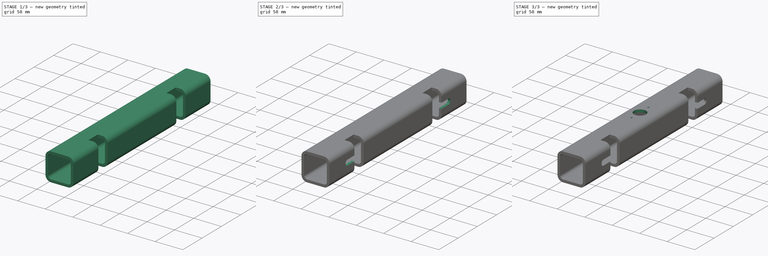
[diagram: build sequence overview — one tinted view per stage of 3, left to right]
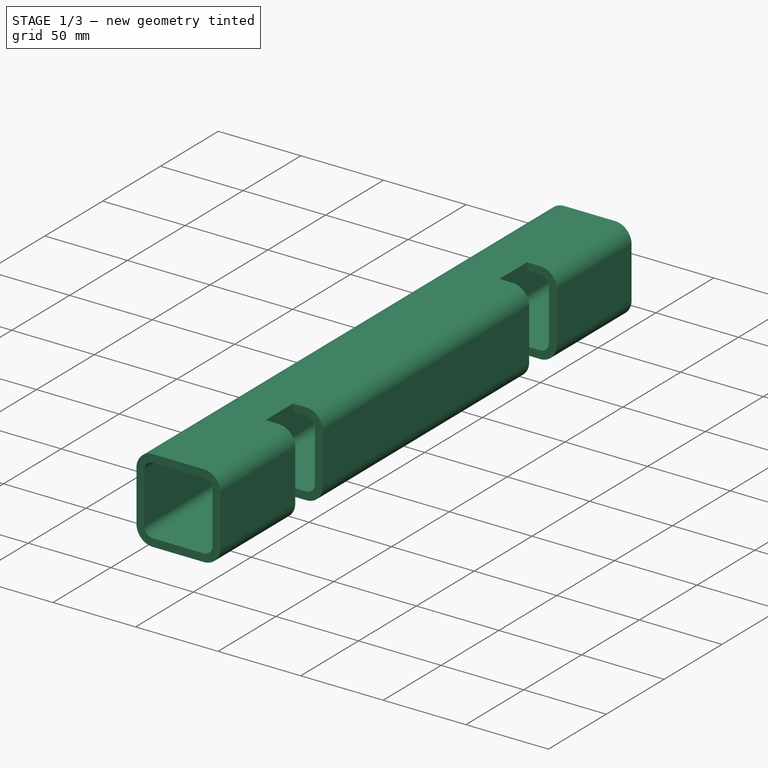
[diagram: stage 1 of 3 — iso view after this stage's code; geometry added in this stage tinted green]
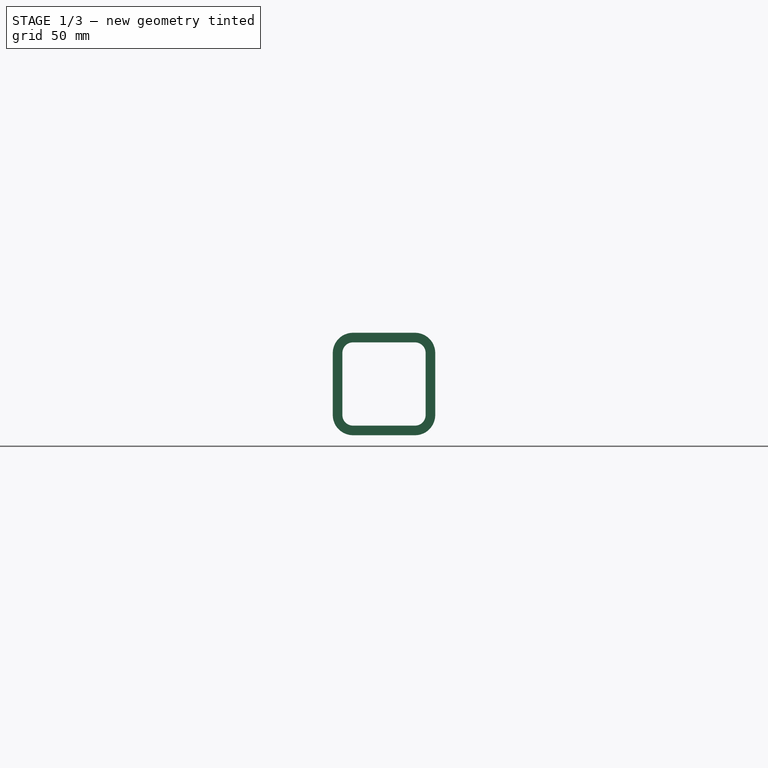
[diagram: stage 1 of 3 — front view after this stage's code; geometry added in this stage tinted green]
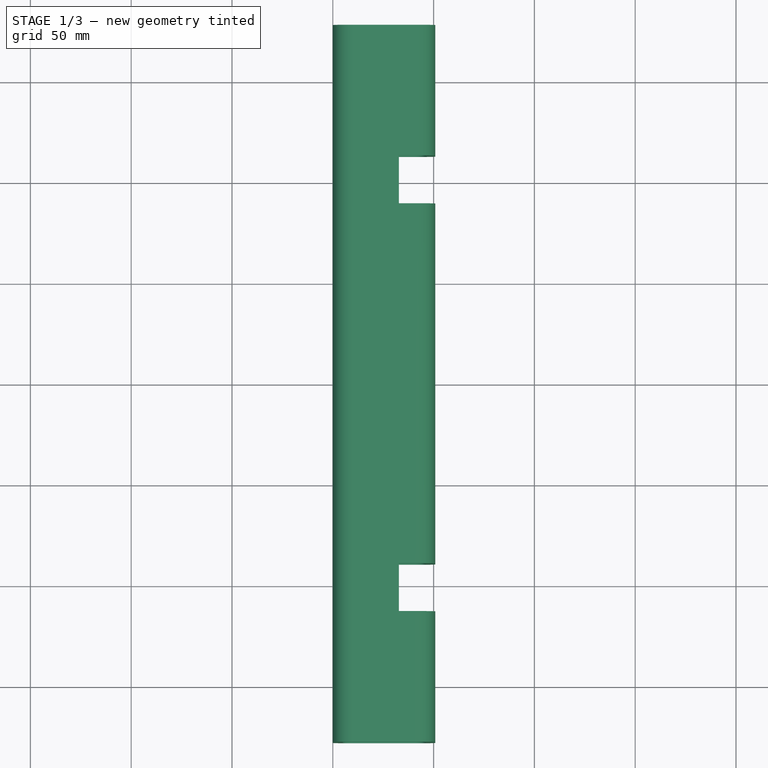
[diagram: stage 1 of 3 — top view after this stage's code; geometry added in this stage tinted green]
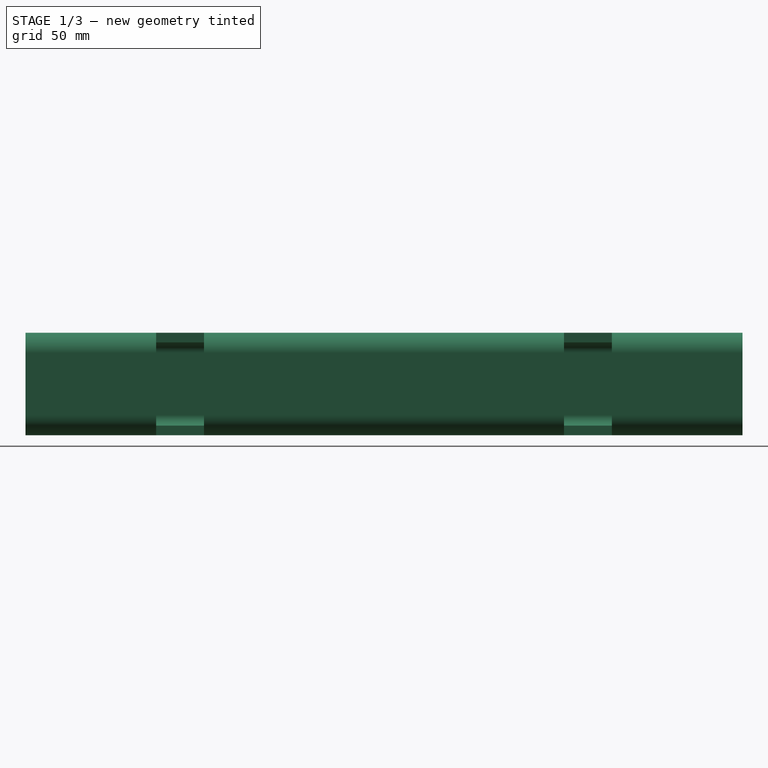
[diagram: stage 1 of 3 — right view after this stage's code; geometry added in this stage tinted green]
FCSTD DOCUMENT  (FreeCAD 0.19R23578 (Git))
Label: frame_top_piece
License: All rights reserved
LicenseURL: http://en.wikipedia.org/wiki/All_rights_reserved
objects: Sketcher::SketchObject×5, PartDesign::Pocket×4, PartDesign::CoordinateSystem×3, PartDesign::Pad×1, PartDesign::Body×1, App::Part×1
note: 19 computed .brp shape members not serialized (recipe doc carries the construction recipe); baked Part::Feature solids carry a one-line shape summary decoded from their .brp

FEATURE [Sketcher::SketchObject] Sketch010
  AttachmentOffset = pos=(0,0,50.8) rot=(0,0,1;0rad)
  MapMode = 5
  Placement = pos=(0,0,50.8) rot=(0,0,1;0rad)
  Support = -> [XY_Plane010]
  expr: Constraints[9] = (2 * 31 ^ 2) ^ 0.5
  sketch-geometry (4):
    g0: Circle CenterX=25.4 CenterY=0 CenterZ=0 NormalX=0 NormalY=0 NormalZ=1 AngleXU=0 Radius=11
    g1: Circle CenterX=25.4 CenterY=21.9203 CenterZ=0 NormalX=0 NormalY=0 NormalZ=1 AngleXU=0 Radius=1.55
    g2: Circle CenterX=25.4 CenterY=-21.9203 CenterZ=0 NormalX=0 NormalY=0 NormalZ=1 AngleXU=0 Radius=1.55
    g3: LineSegment StartX=25.4 StartY=21.9203 StartZ=0 EndX=25.4 EndY=-21.9203 EndZ=0
  constraints (10):
    c: PointOnObject(g0,g-1)
    c: Coincident(g3,g1)
    c: Coincident(g3,g2)
    c: DistanceX(g-1,g0) = 25.4
    c: PointOnObject(g0,g3)
    c: Symmetric(g1,g2,g-1)
    c: Equal(g1,g2)
    c: Diameter(g1) = 3.1
    c: Diameter(g0) = 22
    c: DistanceY(g2,g1) = 43.8406
FEATURE [Sketcher::SketchObject] Sketch011
  MapMode = 5
  Placement = pos=(0,0,0) rot=(0.57735,0.57735,0.57735;2.0944rad)
  Support = -> [YZ_Plane008]
  sketch-geometry (4):
    g0: LineSegment StartX=-20 StartY=20 StartZ=0 EndX=20 EndY=20 EndZ=0
    g1: LineSegment StartX=20 StartY=20 StartZ=0 EndX=20 EndY=-5 EndZ=0
    g2: LineSegment StartX=20 StartY=-5 StartZ=0 EndX=-20 EndY=-5 EndZ=0
    g3: LineSegment StartX=-20 StartY=-5 StartZ=0 EndX=-20 EndY=20 EndZ=0
  constraints (12):
    c: Coincident(g0,g1)
    c: Coincident(g1,g2)
    c: Coincident(g2,g3)
    c: Coincident(g3,g0)
    c: Horizontal(g0)
    c: Horizontal(g2)
    c: Vertical(g1)
    c: Vertical(g3)
    c: DistanceX(g0,g0) = 40
    c: DistanceY(g1,g0) = 25
    c: DistanceY(g-1,g0) = 20
    c: DistanceX(g-1,g0) = 20
FEATURE [Sketcher::SketchObject] Sketch007
  AttachmentOffset = pos=(0,0,50.8) rot=(0,0,1;0rad)
  MapMode = 5
  Placement = pos=(0,0,50.8) rot=(0,0,1;0rad)
  Support = -> [XY_Plane010]
  sketch-geometry (8):
    g0: LineSegment StartX=32.8 StartY=89.25 StartZ=0 EndX=57.8 EndY=89.25 EndZ=0
    g1: LineSegment StartX=57.8 StartY=89.25 StartZ=0 EndX=57.8 EndY=113.05 EndZ=0
    g2: LineSegment StartX=57.8 StartY=113.05 StartZ=0 EndX=32.8 EndY=113.05 EndZ=0
    g3: LineSegment StartX=32.8 StartY=113.05 StartZ=0 EndX=32.8 EndY=89.25 EndZ=0
    g4: LineSegment StartX=32.8 StartY=-89.25 StartZ=0 EndX=57.8 EndY=-89.25 EndZ=0
    g5: LineSegment StartX=57.8 StartY=-89.25 StartZ=0 EndX=57.8 EndY=-113.05 EndZ=0
    g6: LineSegment StartX=57.8 StartY=-113.05 StartZ=0 EndX=32.8 EndY=-113.05 EndZ=0
    g7: LineSegment StartX=32.8 StartY=-113.05 StartZ=0 EndX=32.8 EndY=-89.25 EndZ=0
  constraints (22):
    c: Coincident(g0,g1)
    c: Coincident(g1,g2)
    c: Coincident(g2,g3)
    c: Coincident(g3,g0)
    c: Horizontal(g0)
    c: Horizontal(g2)
    c: Vertical(g1)
    c: Vertical(g3)
    c: Coincident(g4,g5)
    c: Coincident(g5,g6)
    c: Coincident(g6,g7)
    c: Coincident(g7,g4)
    c: Horizontal(g4)
    c: Horizontal(g6)
    c: Vertical(g5)
    c: Vertical(g7)
    c: Symmetric(g0,g4,g-1)
    c: Symmetric(g1,g5,g-1)
    c: DistanceY(g1,g1) = 23.8
    c: DistanceX(g-1,g0) = 32.8
    c: DistanceX(g0,g0) = 25
    c: DistanceY(g4,g0) = 178.5
FEATURE [Sketcher::SketchObject] Sketch008
  MapMode = 5
  Placement = pos=(0,0,0) rot=(1,0,0;1.5708rad)
  Support = -> [XZ_Plane008]
  sketch-geometry (16):
    g0: LineSegment StartX=10 StartY=1.8e-15 StartZ=0 EndX=40.8 EndY=1.8e-15 EndZ=0
    g1: LineSegment StartX=50.8 StartY=10 StartZ=0 EndX=50.8 EndY=40.8 EndZ=0
    g2: LineSegment StartX=40.8 StartY=50.8 StartZ=0 EndX=10 EndY=50.8 EndZ=0
    g3: LineSegment StartX=0 StartY=40.8 StartZ=0 EndX=0 EndY=10 EndZ=0
    g4: ArcOfCircle CenterX=10 CenterY=40.8 CenterZ=0 NormalX=0 NormalY=0 NormalZ=1 AngleXU=0 Radius=10 StartAngle=1.5708 EndAngle=3.14159
    g5: ArcOfCircle CenterX=10 CenterY=10 CenterZ=0 NormalX=0 NormalY=0 NormalZ=1 AngleXU=0 Radius=10 StartAngle=3.14159 EndAngle=4.71239
    g6: ArcOfCircle CenterX=40.8 CenterY=10 CenterZ=0 NormalX=0 NormalY=0 NormalZ=1 AngleXU=0 Radius=10 StartAngle=4.71239 EndAngle=6.28319
    g7: ArcOfCircle CenterX=40.8 CenterY=40.8 CenterZ=0 NormalX=0 NormalY=0 NormalZ=1 AngleXU=0 Radius=10 StartAngle=3e-16 EndAngle=1.5708
    g8: LineSegment StartX=10 StartY=46.0375 StartZ=0 EndX=40.8 EndY=46.0375 EndZ=0
    g9: LineSegment StartX=46.0375 StartY=40.8 StartZ=0 EndX=46.0375 EndY=10 EndZ=0
    g10: LineSegment StartX=40.8 StartY=4.7625 StartZ=0 EndX=10 EndY=4.7625 EndZ=0
    g11: LineSegment StartX=4.7625 StartY=10 StartZ=0 EndX=4.7625 EndY=40.8 EndZ=0
    g12: ArcOfCircle CenterX=10 CenterY=40.8 CenterZ=0 NormalX=0 NormalY=0 NormalZ=1 AngleXU=0 Radius=5.2375 StartAngle=1.5708 EndAngle=3.14159
    g13: ArcOfCircle CenterX=10 CenterY=10 CenterZ=0 NormalX=0 NormalY=0 NormalZ=1 AngleXU=0 Radius=5.2375 StartAngle=3.14159 EndAngle=4.71239
    g14: ArcOfCircle CenterX=40.8 CenterY=10 CenterZ=0 NormalX=0 NormalY=0 NormalZ=1 AngleXU=0 Radius=5.2375 StartAngle=4.71239 EndAngle=6.28319
    g15: ArcOfCircle CenterX=40.8 CenterY=40.8 CenterZ=0 NormalX=0 NormalY=0 NormalZ=1 AngleXU=0 Radius=5.2375 StartAngle=0 EndAngle=1.5708
  constraints (36):
    c: Horizontal(g0)
    c: Horizontal(g2)
    c: Vertical(g1)
    c: Vertical(g3)
    c: Tangent(g2,g4) = -1.5708
    c: Tangent(g3,g4) = -1.5708
    c: Tangent(g3,g5) = -1.5708
    c: Tangent(g0,g5) = -1.5708
    c: Tangent(g0,g6) = -1.5708
    c: Tangent(g1,g6) = -1.5708
    c: Tangent(g2,g7) = -1.5708
    c: Tangent(g1,g7) = -1.5708
    c: Horizontal(g8)
    c: Horizontal(g10)
    c: Vertical(g9)
    c: Tangent(g8,g12) = 1.5708
    c: Tangent(g11,g12) = 1.5708
    c: Tangent(g11,g13) = 1.5708
    c: Tangent(g10,g13) = 1.5708
    c: Tangent(g9,g14) = 1.5708
    c: Tangent(g10,g14) = 1.5708
    c: Tangent(g8,g15) = 1.5708
    c: Tangent(g9,g15) = 1.5708
    c: PointOnObject(g3,g-2)
    c: PointOnObject(g0,g-1)
    c: DistanceX(g3,g1) = 50.8
    c: DistanceY(g0,g2) = 50.8
    c: Coincident(g13,g5)
    c: Coincident(g12,g4)
    c: Coincident(g7,g15)
    c: Coincident(g14,g6)
    c: Equal(g5,g4)
    c: Equal(g4,g7)
    c: Equal(g7,g6)
    c: DistanceX(g3,g11) = 4.7625
    c: DistanceX(g3,g0) = 10
FEATURE [PartDesign::Pad] Pad005
  AllowMultiFace = false
  Direction = (1,1,1)
  Length = 355.6
  Length2 = 100
  Midplane = true
  Placement = pos=(0,0,0) rot=(1,0,0;1.5708rad)
  Profile = -> Sketch008
  Type = 0
FEATURE [PartDesign::Pocket] Pocket002
  AllowMultiFace = false
  BaseFeature = -> Pad005
  Length = 5
  Length2 = 100
  Placement = pos=(0,0,0) rot=(1,0,0;1.5708rad)
  Profile = -> Sketch007
  Type = 1
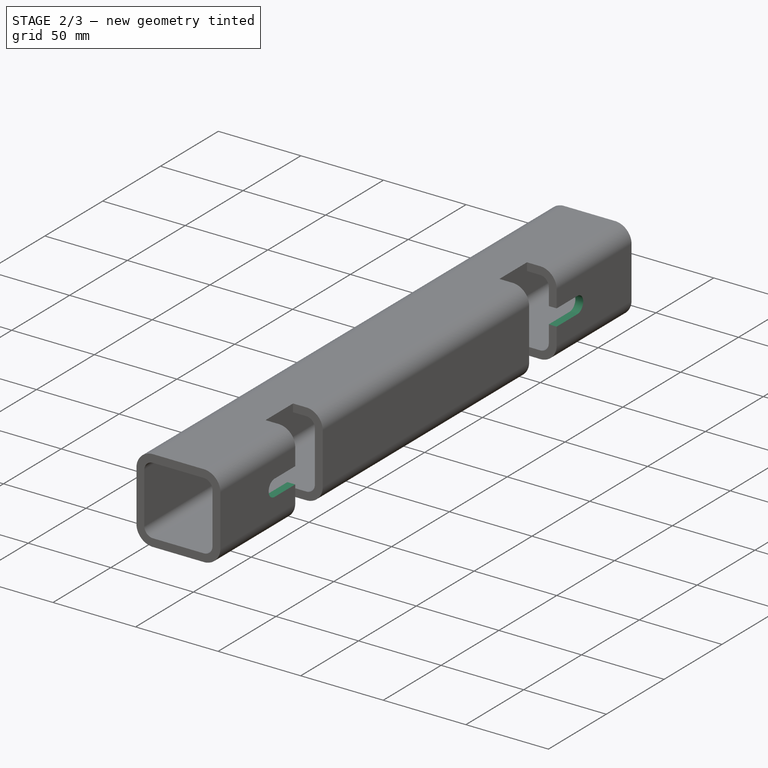
[diagram: stage 2 of 3 — iso view after this stage's code; geometry added in this stage tinted green]
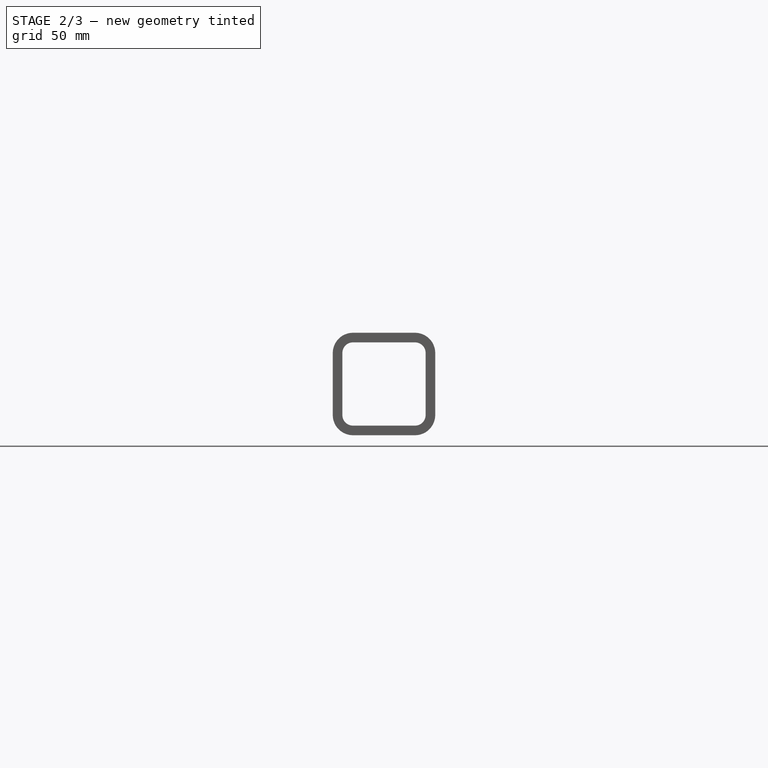
[diagram: stage 2 of 3 — front view after this stage's code; geometry added in this stage tinted green]
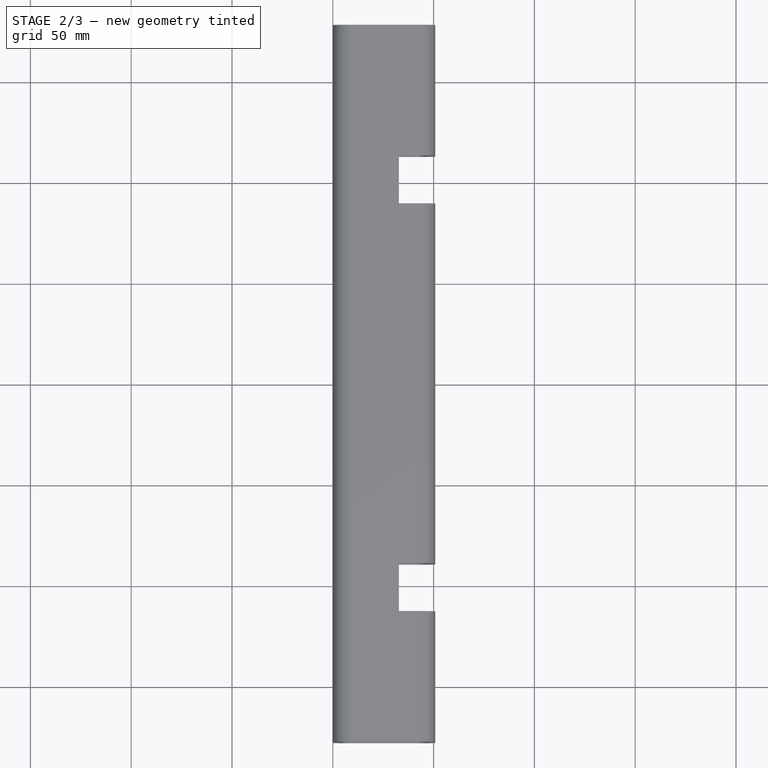
[diagram: stage 2 of 3 — top view after this stage's code; geometry added in this stage tinted green]
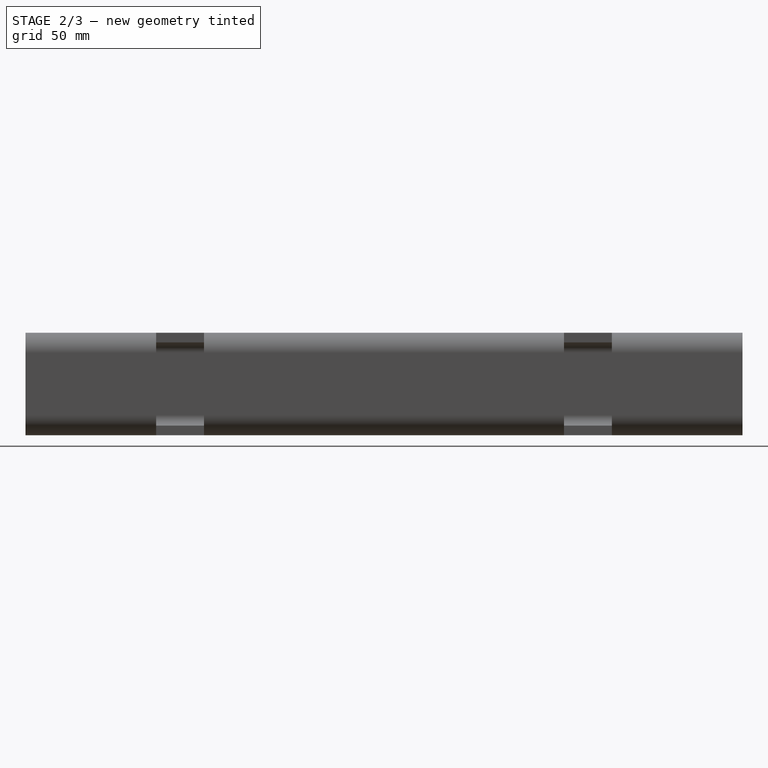
[diagram: stage 2 of 3 — right view after this stage's code; geometry added in this stage tinted green]
FEATURE [Sketcher::SketchObject] Sketch009
  AttachmentOffset = pos=(0,0,50.8) rot=(0,0,1;0rad)
  MapMode = 5
  Placement = pos=(50.8,-1.13e-14,1.13e-14) rot=(0.57735,0.57735,0.57735;2.0944rad)
  Support = -> [YZ_Plane008]
  sketch-geometry (8):
    g0: ArcOfCircle CenterX=-131 CenterY=25.4 CenterZ=0 NormalX=0 NormalY=0 NormalZ=1 AngleXU=0 Radius=5 StartAngle=1.5708 EndAngle=4.71239
    g1: ArcOfCircle CenterX=-95 CenterY=25.4 CenterZ=0 NormalX=0 NormalY=0 NormalZ=1 AngleXU=0 Radius=5 StartAngle=4.71239 EndAngle=7.85398
    g2: LineSegment StartX=-131 StartY=20.4 StartZ=0 EndX=-95 EndY=20.4 EndZ=0
    g3: LineSegment StartX=-131 StartY=30.4 StartZ=0 EndX=-95 EndY=30.4 EndZ=0
    g4: ArcOfCircle CenterX=95 CenterY=25.4 CenterZ=0 NormalX=0 NormalY=0 NormalZ=1 AngleXU=0 Radius=5 StartAngle=1.5708 EndAngle=4.71239
    g5: ArcOfCircle CenterX=131 CenterY=25.4 CenterZ=0 NormalX=0 NormalY=0 NormalZ=1 AngleXU=0 Radius=5 StartAngle=4.71239 EndAngle=7.85398
    g6: LineSegment StartX=95 StartY=20.4 StartZ=0 EndX=131 EndY=20.4 EndZ=0
    g7: LineSegment StartX=95 StartY=30.4 StartZ=0 EndX=131 EndY=30.4 EndZ=0
  constraints (18):
    c: Tangent(g0,g3) = 1.5708
    c: Tangent(g0,g2) = -1.5708
    c: Tangent(g2,g1) = -1.5708
    c: Tangent(g3,g1) = 1.5708
    c: Horizontal(g2)
    c: Equal(g0,g1)
    c: Tangent(g4,g7) = 1.5708
    c: Tangent(g4,g6) = -1.5708
    c: Tangent(g6,g5) = -1.5708
    c: Tangent(g7,g5) = 1.5708
    c: Horizontal(g6)
    c: Symmetric(g4,g1,g-2)
    c: Equal(g4,g1)
    c: Symmetric(g5,g0,g-2)
    c: Diameter(g1) = 10
    c: DistanceY(g-1,g4) = 25.4
    c: DistanceX(g0,g5) = 262
    c: DistanceX(g1,g4) = 190
FEATURE [PartDesign::Pocket] Pocket003
  AllowMultiFace = false
  BaseFeature = -> Pocket002
  Length = 5
  Length2 = 100
  Placement = pos=(0,0,0) rot=(1,0,0;1.5708rad)
  Profile = -> Sketch009
  Type = 2
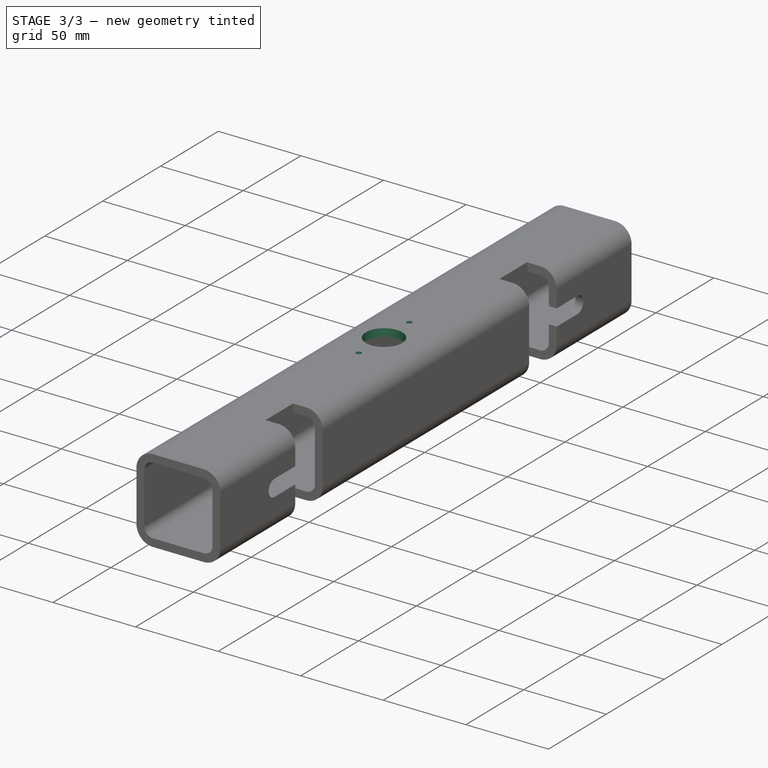
[diagram: stage 3 of 3 — iso view after this stage's code; geometry added in this stage tinted green]
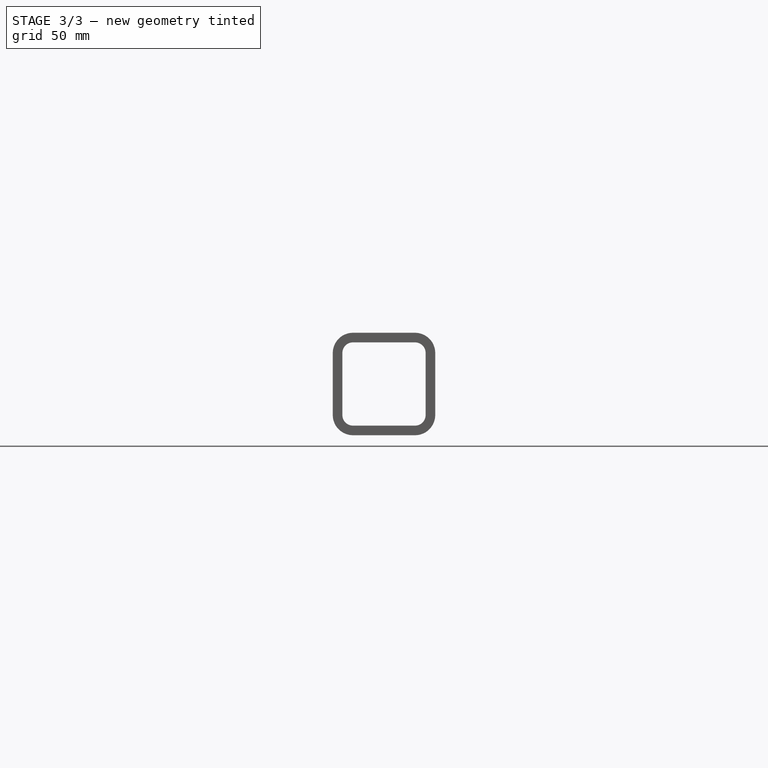
[diagram: stage 3 of 3 — front view after this stage's code; geometry added in this stage tinted green]
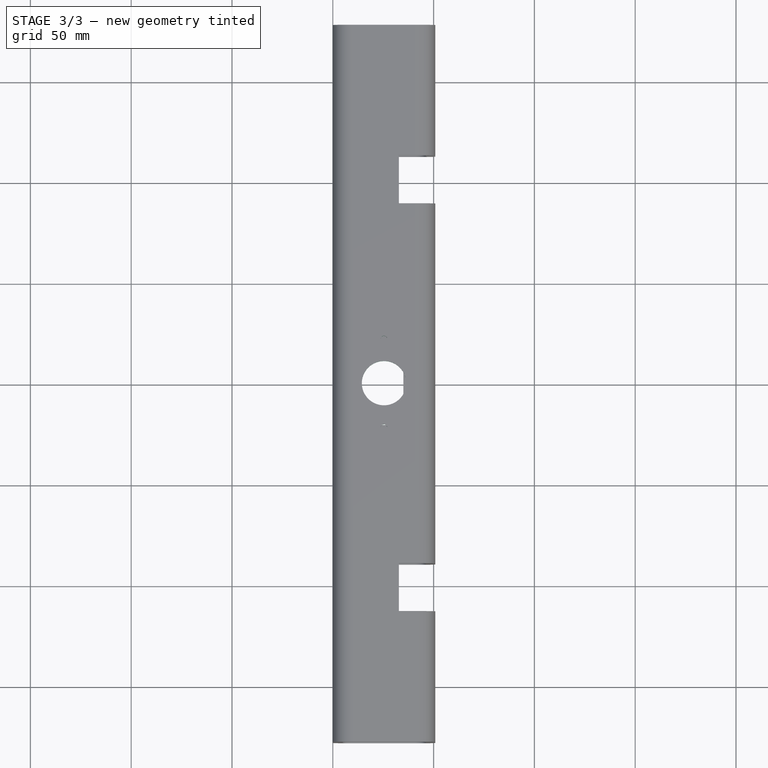
[diagram: stage 3 of 3 — top view after this stage's code; geometry added in this stage tinted green]
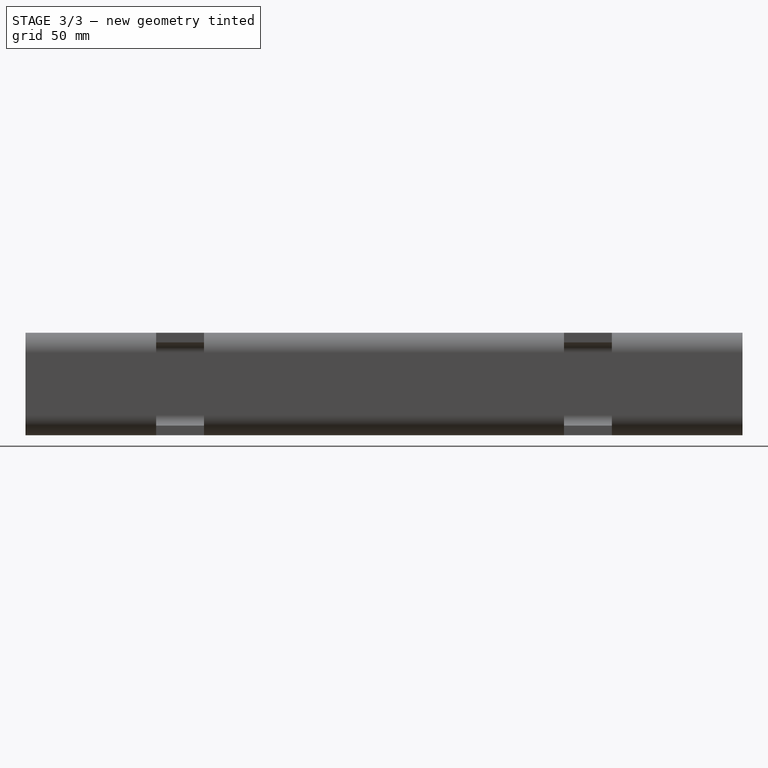
[diagram: stage 3 of 3 — right view after this stage's code; geometry added in this stage tinted green]
FEATURE [PartDesign::Pocket] Pocket004
  AllowMultiFace = false
  BaseFeature = -> Pocket003
  Length = 5
  Length2 = 100
  Placement = pos=(0,0,0) rot=(1,0,0;1.5708rad)
  Profile = -> Sketch010
  Type = 2
FEATURE [PartDesign::Pocket] Pocket005
  AllowMultiFace = false
  BaseFeature = -> Pocket004
  Length = 35
  Length2 = 100
  Placement = pos=(0,0,0) rot=(1,0,0;1.5708rad)
  Profile = -> Sketch011
  Reversed = true
  Type = 0
FEATURE [PartDesign::Body] Body005
  Group = -> [Sketch008,Pad005,Sketch007,Pocket002,Sketch009,Pocket003,Sketch010,Pocket004,Sketch011,Pocket005]
  Origin = -> Origin010
  Tip = -> Pocket005
FEATURE [PartDesign::CoordinateSystem] LCS_1
  AttacherType = Attacher::AttachEngine3D
  AttachmentOffset = pos=(25.4,0,0) rot=(0,0,1;0rad)
  MapMode = 45
  Placement = pos=(25.4,-152.4,1.8e-15) rot=(0.57735,0.57735,0.57735;2.0944rad)
  Support = -> [Pocket005]
  expr: .AttachmentOffset.Base.x = 1"
FEATURE [PartDesign::CoordinateSystem] LCS_2
  AttacherType = Attacher::AttachEngine3D
  AttachmentOffset = pos=(-25.4,0,0) rot=(0,0,1;0rad)
  MapMode = 45
  Placement = pos=(25.4,152.4,1.8e-15) rot=(0.57735,0.57735,0.57735;2.0944rad)
  Support = -> [Pocket005]
  expr: .AttachmentOffset.Base.x = -1"
FEATURE [PartDesign::CoordinateSystem] LCS_3
  AttacherType = Attacher::AttachEngine3D
  MapMode = 11
  Placement = pos=(25.4,0,50.8) rot=(0,0,1;1.5708rad)
  Support = -> [Pocket005]
FEATURE [App::Part] Part007  label="frame_top_piece"
  Group = -> [Body005,LCS_1,LCS_2,LCS_3]
  Origin = -> Origin008
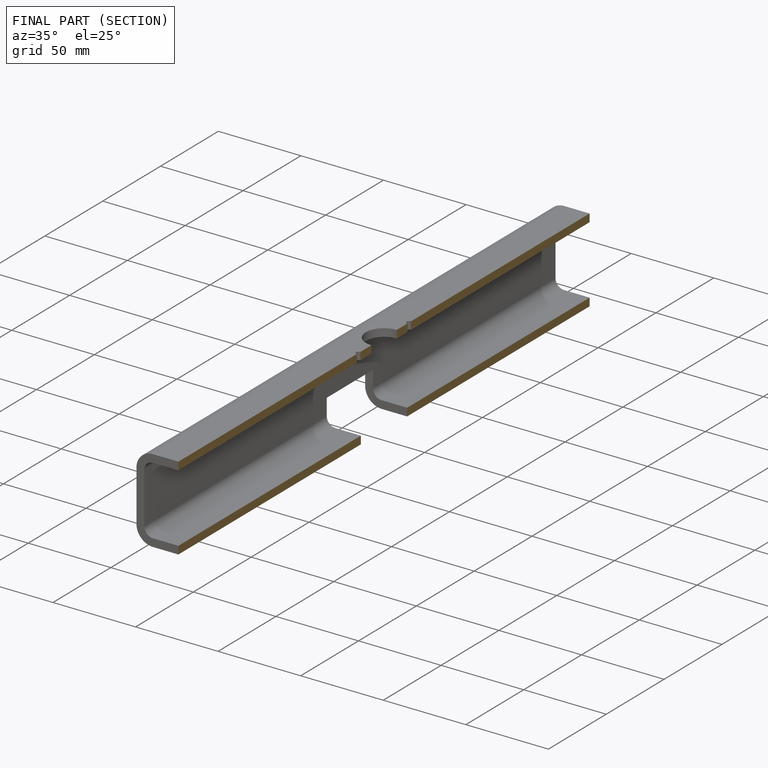
[diagram: finished part — half-section view (interior)]
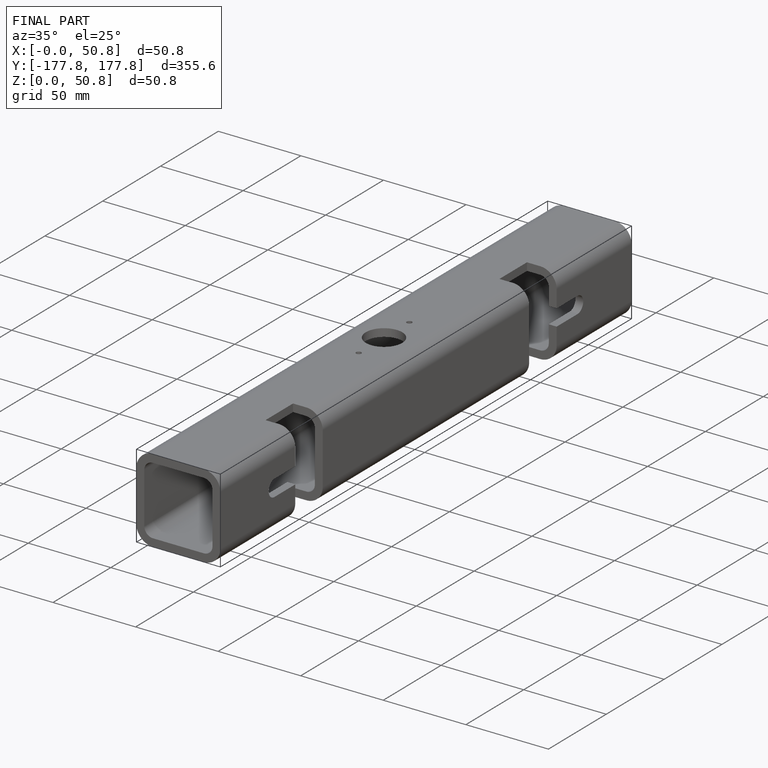
[diagram: finished part — iso view with bounding-box wireframe]
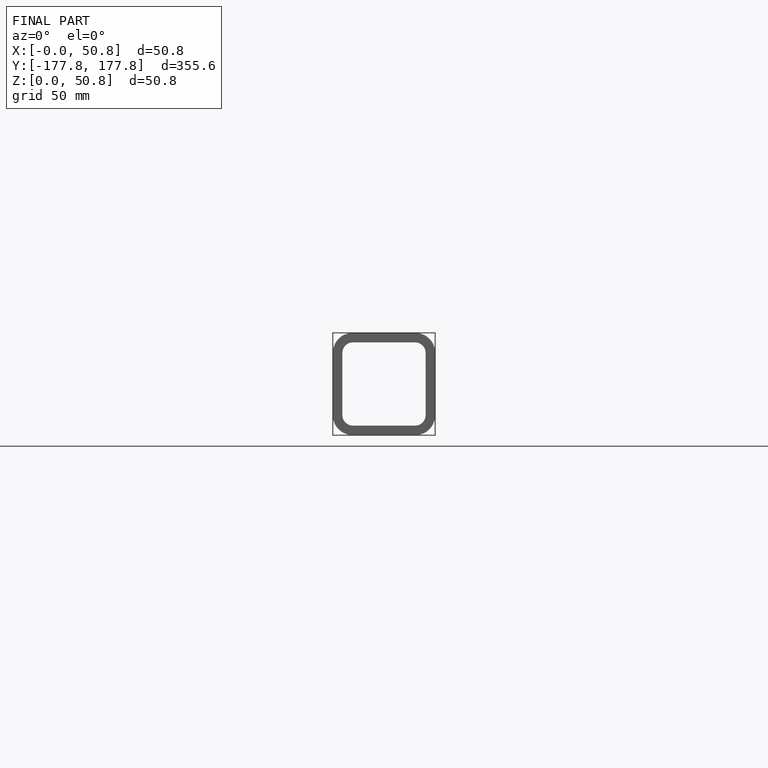
[diagram: finished part — front view with bounding-box wireframe]
